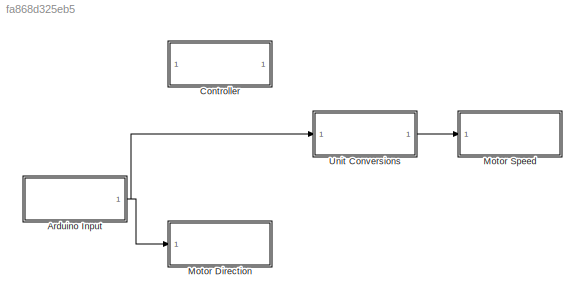
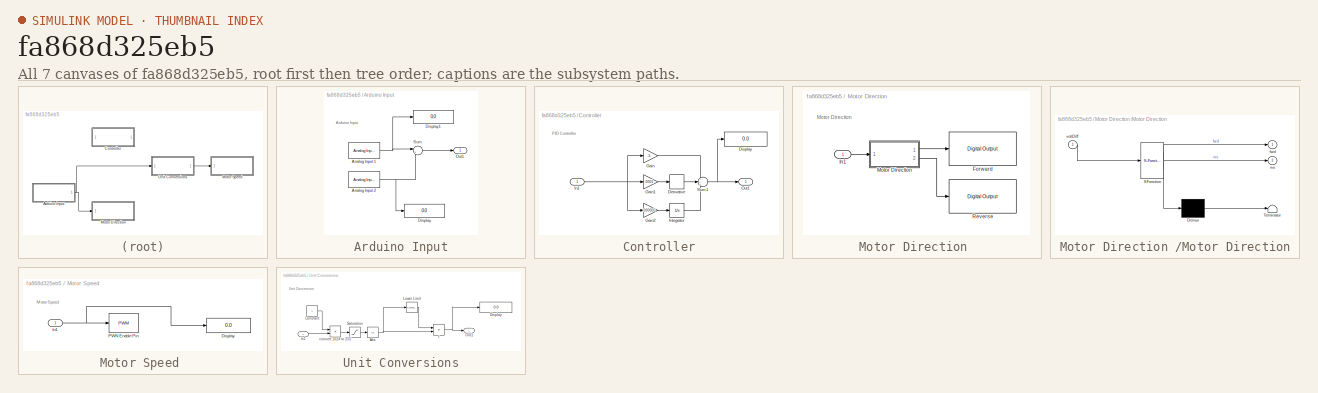
[diagram: thumbnail index - all 7 canvases of the model, root first then tree order]
MODEL slx_fa868d325eb5
KIND model
CONFIG AbsTol = auto
CONFIG EnableMultiTasking = on
CONFIG FixedStep = auto
CONFIG MaxStep = auto
CONFIG MinStep = auto
CONFIG RelTol = 1e-3
CONFIG SampleTimeConstraint = Unconstrained
CONFIG Solver = FixedStepAuto
CONFIG SolverName = FixedStepAuto
CONFIG StartTime = 0.0
CONFIG StopTime = inf
BLOCK [SubSystem] Arduino Input
  Ports = [0, 1]
  RequestExecContextInheritance = off
  Variant = off
BLOCK [Reference] Arduino Input/Analog Input 1  REF=arduinolib/Analog Input
  Ports = [0, 1]
  SourceBlock = arduinolib/Analog Input
  SourceType = Arduino Analog Input
BLOCK [Reference] Arduino Input/Analog Input 2  REF=arduinolib/Analog Input
  Ports = [0, 1]
  SourceBlock = arduinolib/Analog Input
  SourceType = Arduino Analog Input
BLOCK [Display] Arduino Input/Display
  Decimation = 1
  Ports = [1]
BLOCK [Display] Arduino Input/Display1
  Decimation = 1
  Ports = [1]
BLOCK [Outport] Arduino Input/Out1
  IconDisplay = Port number
BLOCK [Sum] Arduino Input/Sum
  IconShape = round
  InputSameDT = off
  Inputs = |+-
  OutDataTypeStr = double
  Ports = [2, 1]
  SaturateOnIntegerOverflow = off
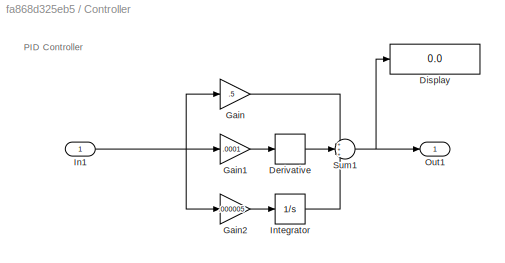
BLOCK [SubSystem] Controller
  Ports = [1, 1]
  RequestExecContextInheritance = off
  Variant = off
BLOCK [Derivative] Controller/Derivative
BLOCK [Display] Controller/Display
  Decimation = 1
  Ports = [1]
BLOCK [Gain] Controller/Gain
  Gain = .5
  OutDataTypeStr = Inherit: Inherit via internal rule
  ParamDataTypeStr = Inherit: Inherit via internal rule
  SaturateOnIntegerOverflow = off
BLOCK [Gain] Controller/Gain1
  Gain = .0001
  OutDataTypeStr = Inherit: Inherit via internal rule
  ParamDataTypeStr = Inherit: Inherit via internal rule
  SaturateOnIntegerOverflow = off
BLOCK [Gain] Controller/Gain2
  Gain = .000005
  OutDataTypeStr = Inherit: Inherit via internal rule
  ParamDataTypeStr = Inherit: Inherit via internal rule
  SaturateOnIntegerOverflow = off
BLOCK [Inport] Controller/In1
  IconDisplay = Port number
BLOCK [Integrator] Controller/Integrator
  Ports = [1, 1]
BLOCK [Outport] Controller/Out1
  IconDisplay = Port number
BLOCK [Sum] Controller/Sum1
  IconShape = round
  InputSameDT = off
  Inputs = +++
  OutDataTypeStr = Inherit: Inherit via internal rule
  Ports = [3, 1]
  SaturateOnIntegerOverflow = off
BLOCK [SubSystem] Motor Direction 
  Ports = [1]
  RequestExecContextInheritance = off
  Variant = off
BLOCK [Reference] Motor Direction /Forward  REF=arduinolib/Digital Output
  Ports = [1]
  SourceBlock = arduinolib/Digital Output
  SourceType = Arduino Digital Output
BLOCK [Inport] Motor Direction /In1
  IconDisplay = Port number
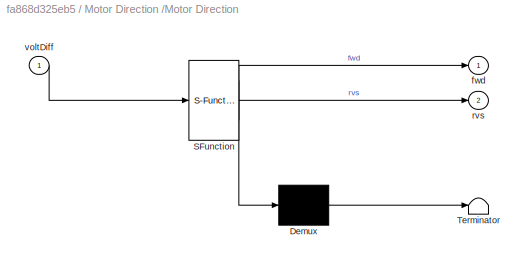
BLOCK [SubSystem] Motor Direction /Motor Direction
  ErrorFcn = Stateflow.Translate.translate
  PermitHierarchicalResolution = ExplicitOnly
  Ports = [1, 2]
  RequestExecContextInheritance = off
  SFBlockType = MATLAB Function
  TreatAsAtomicUnit = on
  Variant = off
BLOCK [Demux] Motor Direction /Motor Direction/ Demux 
  Outputs = 1
  Ports = [1, 1]
BLOCK [S-Function] Motor Direction /Motor Direction/ SFunction 
  EnableBusSupport = on
  FunctionName = sf_sfun
  PortCounts = [1 3]
  Ports = [1, 3]
  SFcnIsStateOwnerBlock = off
  SFunctionDeploymentMode = off
  Tag = Stateflow S-Function Final 2
BLOCK [Terminator] Motor Direction /Motor Direction/ Terminator 
BLOCK [Outport] Motor Direction /Motor Direction/fwd
  IconDisplay = Port number
BLOCK [Outport] Motor Direction /Motor Direction/rvs
  IconDisplay = Port number
  Port = 2
BLOCK [Inport] Motor Direction /Motor Direction/voltDiff
  IconDisplay = Port number
BLOCK [Reference] Motor Direction /Reverse  REF=arduinolib/Digital Output
  Ports = [1]
  SourceBlock = arduinolib/Digital Output
  SourceType = Arduino Digital Output
BLOCK [SubSystem] Motor Speed 
  Ports = [1]
  RequestExecContextInheritance = off
  Variant = off
BLOCK [Display] Motor Speed /Display
  Decimation = 1
  Ports = [1]
BLOCK [Inport] Motor Speed /In1
  IconDisplay = Port number
BLOCK [Reference] Motor Speed /PWN Enable Pin  REF=arduinolib/PWM
  Ports = [1]
  SourceBlock = arduinolib/PWM
  SourceType = Arduino PWM
BLOCK [SubSystem] Unit Conversions
  Ports = [1, 1]
  RequestExecContextInheritance = off
  Variant = off
BLOCK [Abs] Unit Conversions/Abs
  SaturateOnIntegerOverflow = off
BLOCK [Constant] Unit Conversions/Constant
BLOCK [Display] Unit Conversions/Display
  Decimation = 1
  Ports = [1]
BLOCK [Inport] Unit Conversions/In1
  IconDisplay = Port number
BLOCK [Reference] Unit Conversions/Lower Limit  REF=simulink/Logic and Bit
Operations/Compare
To Constant
  Ports = [1, 1]
  SourceBlock = simulink/Logic and Bit\nOperations/Compare\nTo Constant
  SourceType = Compare To Constant
BLOCK [Outport] Unit Conversions/Out1
  IconDisplay = Port number
BLOCK [Saturate] Unit Conversions/Saturation
  InputPortMap = u0
  LowerLimit = -254
  Ports = [1, 1]
  UpperLimit = 254
BLOCK [Product] Unit Conversions/convert 1024 to 255
  InputSameDT = off
  OutDataTypeStr = Inherit: Inherit via internal rule
  Ports = [2, 1]
  RndMeth = Floor
  SaturateOnIntegerOverflow = off
BLOCK [Product] Unit Conversions/f
  InputSameDT = off
  OutDataTypeStr = Inherit: Inherit via internal rule
  Ports = [2, 1]
  RndMeth = Floor
  SaturateOnIntegerOverflow = off
ANNOTATION Arduino Input: Arduino Input
ANNOTATION Controller: PID Controller
ANNOTATION Motor Direction : Motor Direction
ANNOTATION Motor Speed : Motor Speed
ANNOTATION Unit Conversions: Unit Conversion
NET Arduino Input/Analog Input 1:1 -> Arduino Input/Display1:1, Arduino Input/Sum:1
NET Arduino Input/Analog Input 2:1 -> Arduino Input/Display:1, Arduino Input/Sum:2
LINE Arduino Input/Sum:1 -> Arduino Input/Out1:1
NET Arduino Input:1 -> Motor Direction :1, Unit Conversions:1
LINE Controller/Derivative:1 -> Controller/Sum1:2
LINE Controller/Gain1:1 -> Controller/Derivative:1
LINE Controller/Gain2:1 -> Controller/Integrator:1
LINE Controller/Gain:1 -> Controller/Sum1:1
NET Controller/In1:1 -> Controller/Gain1:1, Controller/Gain2:1, Controller/Gain:1
LINE Controller/Integrator:1 -> Controller/Sum1:3
NET Controller/Sum1:1 -> Controller/Display:1, Controller/Out1:1
LINE Motor Direction /In1:1 -> Motor Direction /Motor Direction:1
LINE Motor Direction /Motor Direction:1 -> Motor Direction /Forward:1
LINE Motor Direction /Motor Direction:2 -> Motor Direction /Reverse:1
NET Motor Speed /In1:1 -> Motor Speed /Display:1, Motor Speed /PWN Enable Pin:1
NET Unit Conversions/Abs:1 -> Unit Conversions/Lower Limit:1, Unit Conversions/f:2
LINE Unit Conversions/Constant:1 -> Unit Conversions/convert 1024 to 255:1
LINE Unit Conversions/In1:1 -> Unit Conversions/convert 1024 to 255:2
LINE Unit Conversions/Lower Limit:1 -> Unit Conversions/f:1
LINE Unit Conversions/Saturation:1 -> Unit Conversions/Abs:1
LINE Unit Conversions/convert 1024 to 255:1 -> Unit Conversions/Saturation:1
NET Unit Conversions/f:1 -> Unit Conversions/Display:1, Unit Conversions/Out1:1
LINE Unit Conversions:1 -> Motor Speed :1
note: NET lines group one-source signal fan-out (src -> all destinations, sorted); 1:1 wires keep LINE
CHART Motor Direction
/Motor Direction states=1 transitions=1
  STATE_LABEL 'eML_blk_kernel()'
  STATE_LABEL 'SCRIPT:\nfunction [fwd,rvs] = fcn(voltDiff)\n\n\nif voltDiff > 0 \n    fwd = 1; % motor forward\n    rvs = 0;\n\nelse\n    fwd = 0; % motor reverse\n    rvs = 1; \n\nend\n\n    \n    \n\n'
